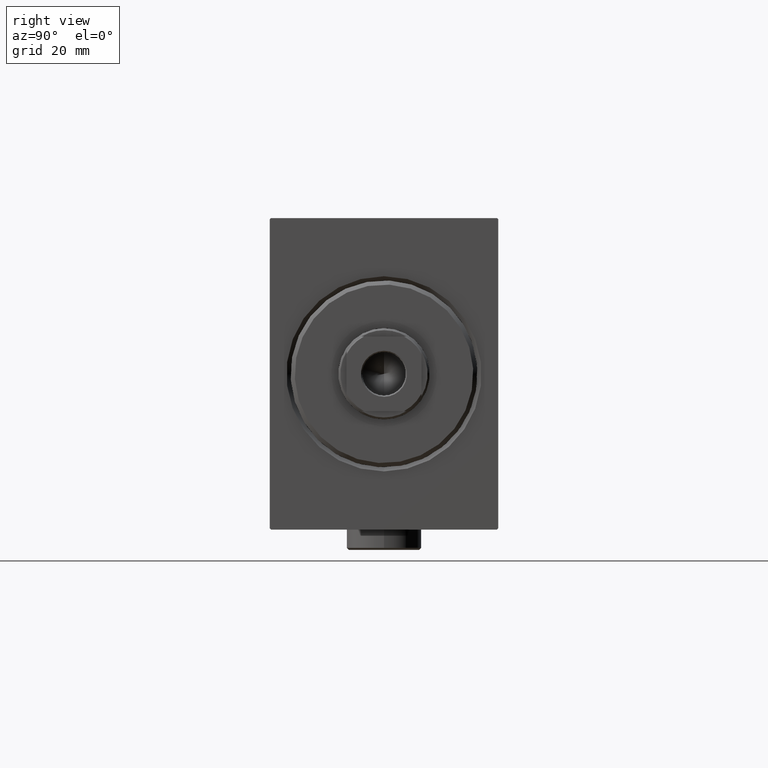
[diagram: clean part render]
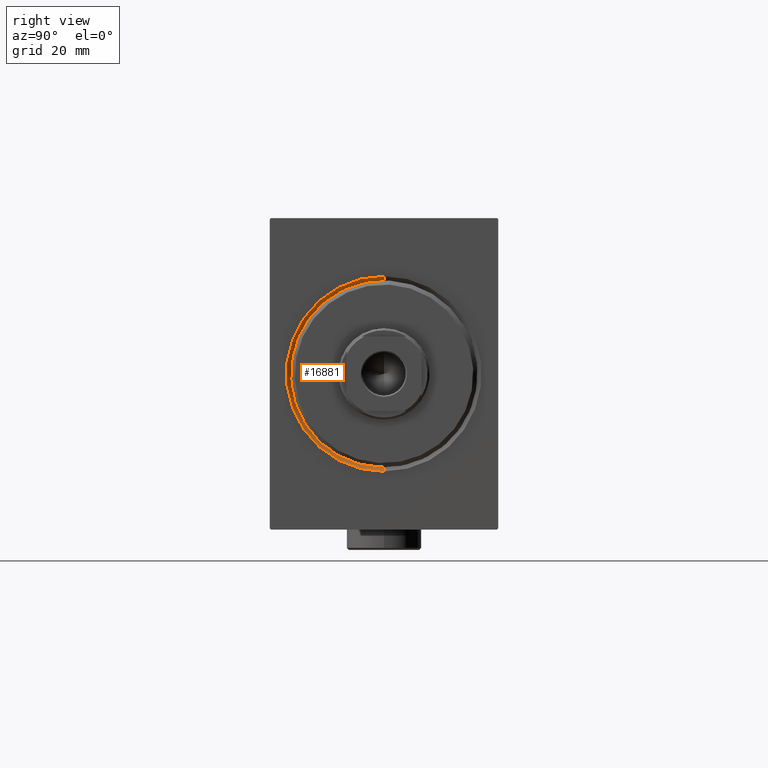
[diagram: same view with one face highlighted and labeled with its STEP entity id]
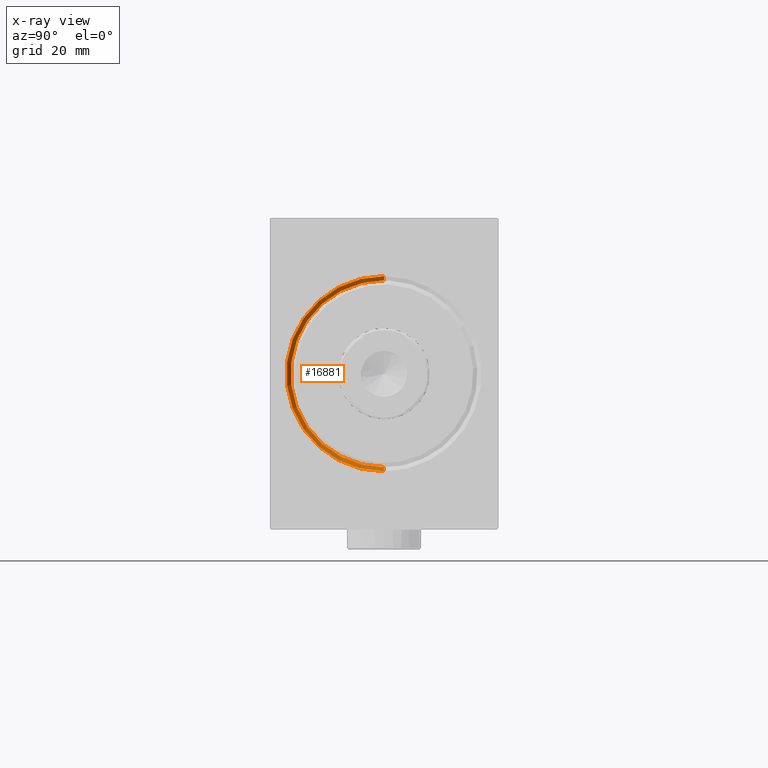
[diagram: x-ray of the same camera — body ghosted, the highlighted face saturated]
A machine part, right view. The second image highlights one B-rep face of the part: STEP entity #16881.
The next image is the same camera in x-ray: the body ghosted, the highlighted face saturated — about 0% of this face is hidden behind the body in this view.
In plain terms, the highlighted conical surface has half-angle 45 deg.
Its self-contained STEP definition (entity closure, byte-faithful):
#635 = EDGE_CURVE ( 'NONE', #19712, #11983, #12808, .T. ) ;
#699 = AXIS2_PLACEMENT_3D ( 'NONE', #33505, #12442, #22750 ) ;
#2378 = ORIENTED_EDGE ( 'NONE', *, *, #43996, .T. ) ;
#2405 = EDGE_CURVE ( 'NONE', #29680, #19712, #7618, .T. ) ;
#2721 = LINE ( 'NONE', #25803, #25665 ) ;
#3245 = CARTESIAN_POINT ( 'NONE',  ( 1.000000000000014655, 0.000000000000000000, 0.000000000000000000 ) ) ;
#5303 = CARTESIAN_POINT ( 'NONE',  ( 0.000000000000000000, 2.877919977996282293E-15, -23.50000000000001776 ) ) ;
#6288 = CARTESIAN_POINT ( 'NONE',  ( 1.000000000000014655, 2.755455298081545172E-15, -22.50000000000000355 ) ) ;
#7618 = CIRCLE ( 'NONE', #20458, 22.50000000000000355 ) ;
#8412 = ORIENTED_EDGE ( 'NONE', *, *, #2405, .F. ) ;
#10557 = DIRECTION ( 'NONE',  ( 1.000000000000000000, 0.000000000000000000, 0.000000000000000000 ) ) ;
#10677 = EDGE_CURVE ( 'NONE', #11983, #16815, #39179, .T. ) ;
#11140 = CARTESIAN_POINT ( 'NONE',  ( 0.000000000000000000, 0.000000000000000000, 23.50000000000001776 ) ) ;
#11983 = VERTEX_POINT ( 'NONE', #5303 ) ;
#12442 = DIRECTION ( 'NONE',  ( -1.000000000000000000, 0.000000000000000000, 0.000000000000000000 ) ) ;
#12808 = LINE ( 'NONE', #6288, #40499 ) ;
#12904 = DIRECTION ( 'NONE',  ( -1.000000000000000000, 0.000000000000000000, 0.000000000000000000 ) ) ;
#16815 = VERTEX_POINT ( 'NONE', #11140 ) ;
#16881 = ADVANCED_FACE ( 'NONE', ( #37093 ), #20009, .F. ) ;
#18529 = ORIENTED_EDGE ( 'NONE', *, *, #635, .F. ) ;
#19712 = VERTEX_POINT ( 'NONE', #36616 ) ;
#20009 = CONICAL_SURFACE ( 'NONE', #699, 22.50000000000000355, 0.7853981633974482790 ) ;
#20458 = AXIS2_PLACEMENT_3D ( 'NONE', #3245, #12904, #37110 ) ;
#20632 = DIRECTION ( 'NONE',  ( 0.000000000000000000, 0.000000000000000000, -1.000000000000000000 ) ) ;
#22750 = DIRECTION ( 'NONE',  ( 0.000000000000000000, 0.000000000000000000, 1.000000000000000000 ) ) ;
#25665 = VECTOR ( 'NONE', #40377, 1000.000000000000114 ) ;
#25803 = CARTESIAN_POINT ( 'NONE',  ( 1.000000000000014655, 0.000000000000000000, 22.50000000000000355 ) ) ;
#29680 = VERTEX_POINT ( 'NONE', #33066 ) ;
#33066 = CARTESIAN_POINT ( 'NONE',  ( 1.000000000000014655, 0.000000000000000000, 22.50000000000000355 ) ) ;
#33213 = EDGE_LOOP ( 'NONE', ( #18529, #8412, #2378, #44334 ) ) ;
#33505 = CARTESIAN_POINT ( 'NONE',  ( 1.000000000000014655, 0.000000000000000000, 0.000000000000000000 ) ) ;
#34904 = AXIS2_PLACEMENT_3D ( 'NONE', #37239, #10557, #20632 ) ;
#36120 = DIRECTION ( 'NONE',  ( -0.7071067811865474617, 8.659560562354932858E-17, -0.7071067811865474617 ) ) ;
#36616 = CARTESIAN_POINT ( 'NONE',  ( 1.000000000000014655, 2.755455298081545172E-15, -22.50000000000000355 ) ) ;
#37093 = FACE_OUTER_BOUND ( 'NONE', #33213, .T. ) ;
#37110 = DIRECTION ( 'NONE',  ( 0.000000000000000000, 0.000000000000000000, -1.000000000000000000 ) ) ;
#37239 = CARTESIAN_POINT ( 'NONE',  ( 0.000000000000000000, 0.000000000000000000, 0.000000000000000000 ) ) ;
#39179 = CIRCLE ( 'NONE', #34904, 23.50000000000001776 ) ;
#40377 = DIRECTION ( 'NONE',  ( -0.7071067811865474617, 0.000000000000000000, 0.7071067811865474617 ) ) ;
#40499 = VECTOR ( 'NONE', #36120, 1000.000000000000114 ) ;
#43996 = EDGE_CURVE ( 'NONE', #29680, #16815, #2721, .T. ) ;
#44334 = ORIENTED_EDGE ( 'NONE', *, *, #10677, .F. ) ;